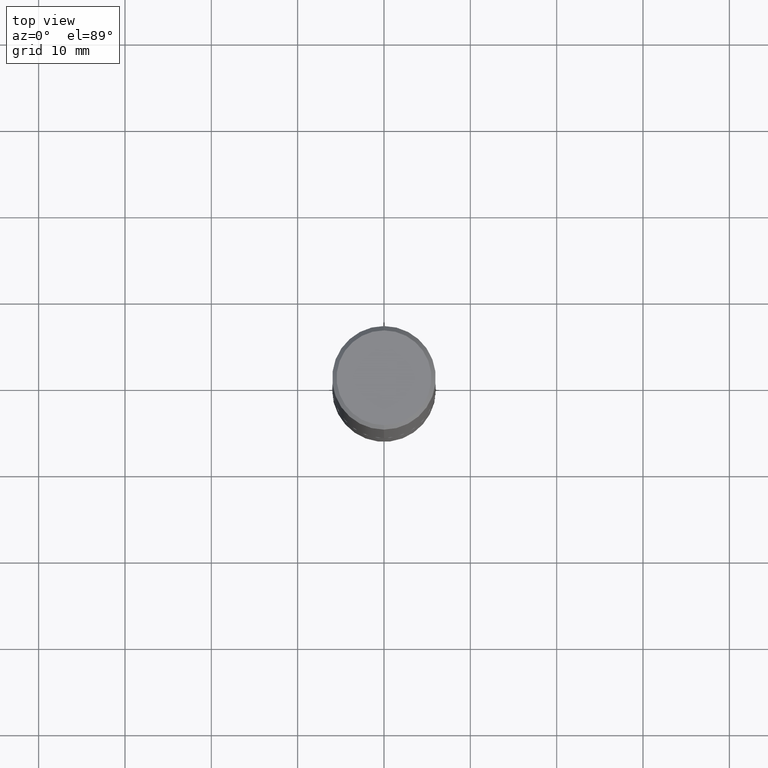
[diagram: clean part render]
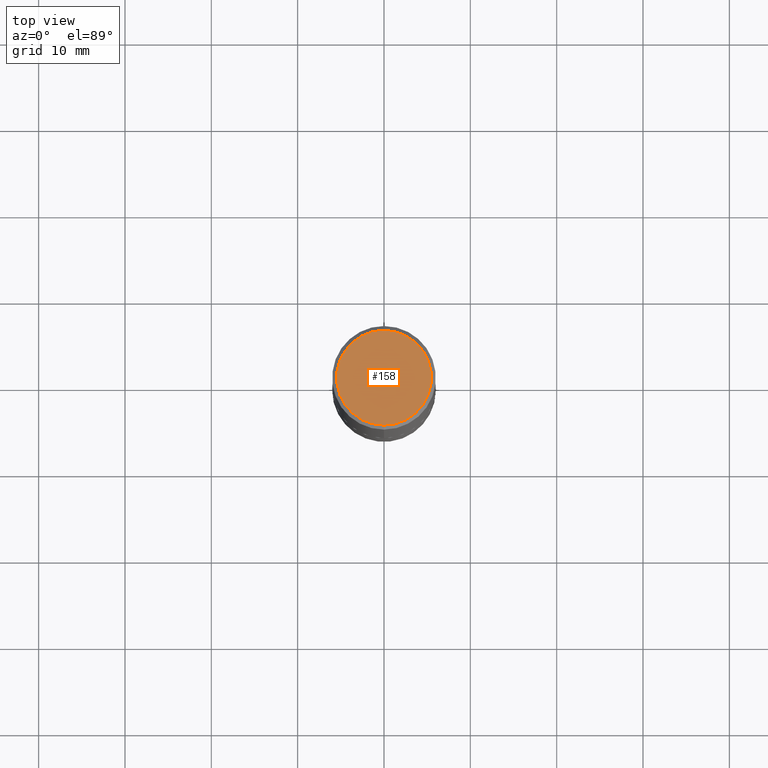
[diagram: same view with one face highlighted and labeled with its STEP entity id]
A machine part, top view. The second image highlights one B-rep face of the part: STEP entity #158.
In plain terms, the highlighted planar face has unit normal (0, -0, -1).
Its self-contained STEP definition (entity closure, byte-faithful):
#6 = CARTESIAN_POINT ( 'NONE',  ( -3.161204365203424069E-46, 4.514835099746631820E-32, 1.292888895126931146E-17 ) ) ;
#20 = VERTEX_POINT ( 'NONE', #377 ) ;
#45 = DIRECTION ( 'NONE',  ( 6.982962677686265922E-15, 1.000000000000000000, -3.492051882233377311E-15 ) ) ;
#63 = CARTESIAN_POINT ( 'NONE',  ( -1.551844647095920339E-15, -0.2162000000000000033, 7.679105058901254966E-16 ) ) ;
#65 = EDGE_CURVE ( 'NONE', #20, #289, #379, .T. ) ;
#69 = DIRECTION ( 'NONE',  ( -2.445070397865137758E-29, 3.492051882233377311E-15, 1.000000000000000000 ) ) ;
#110 = ORIENTED_EDGE ( 'NONE', *, *, #65, .T. ) ;
#128 = EDGE_LOOP ( 'NONE', ( #110, #338 ) ) ;
#131 = AXIS2_PLACEMENT_3D ( 'NONE', #397, #334, #45 ) ;
#137 = AXIS2_PLACEMENT_3D ( 'NONE', #6, #393, #362 ) ;
#158 = ADVANCED_FACE ( 'NONE', ( #208 ), #302, .F. ) ;
#208 = FACE_OUTER_BOUND ( 'NONE', #128, .T. ) ;
#289 = VERTEX_POINT ( 'NONE', #63 ) ;
#295 = CIRCLE ( 'NONE', #326, 0.2162000000000000033 ) ;
#302 = PLANE ( 'NONE',  #131 ) ;
#326 = AXIS2_PLACEMENT_3D ( 'NONE', #358, #69, #382 ) ;
#334 = DIRECTION ( 'NONE',  ( 2.445070397865137478E-29, -3.492051882233377311E-15, -1.000000000000000000 ) ) ;
#338 = ORIENTED_EDGE ( 'NONE', *, *, #413, .T. ) ;
#358 = CARTESIAN_POINT ( 'NONE',  ( -3.161204365203424069E-46, 4.514835099746631820E-32, 1.292888895126931146E-17 ) ) ;
#362 = DIRECTION ( 'NONE',  ( -6.982962677686265922E-15, -1.000000000000000000, 3.492051882233376917E-15 ) ) ;
#377 = CARTESIAN_POINT ( 'NONE',  ( 1.579546157692633819E-15, 0.2162000000000000033, -7.420527279875869384E-16 ) ) ;
#379 = CIRCLE ( 'NONE', #137, 0.2162000000000000033 ) ;
#382 = DIRECTION ( 'NONE',  ( -6.982962677686265922E-15, -1.000000000000000000, 3.492051882233376917E-15 ) ) ;
#393 = DIRECTION ( 'NONE',  ( -2.445070397865137758E-29, 3.492051882233377311E-15, 1.000000000000000000 ) ) ;
#397 = CARTESIAN_POINT ( 'NONE',  ( 1.509716530915770718E-15, 0.2162000000000000033, -7.485171724632214300E-16 ) ) ;
#413 = EDGE_CURVE ( 'NONE', #289, #20, #295, .T. ) ;